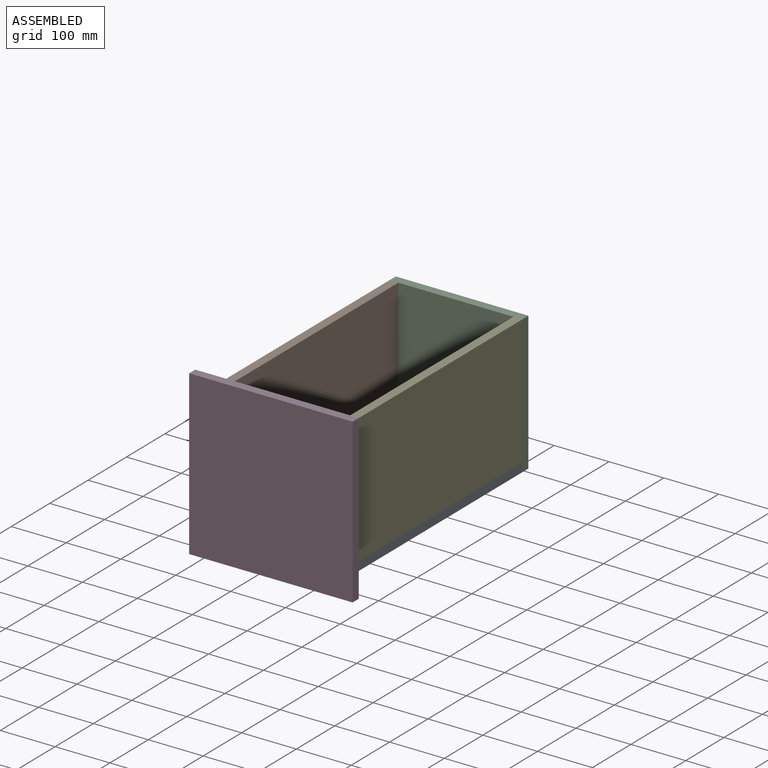
[diagram: assembled view]
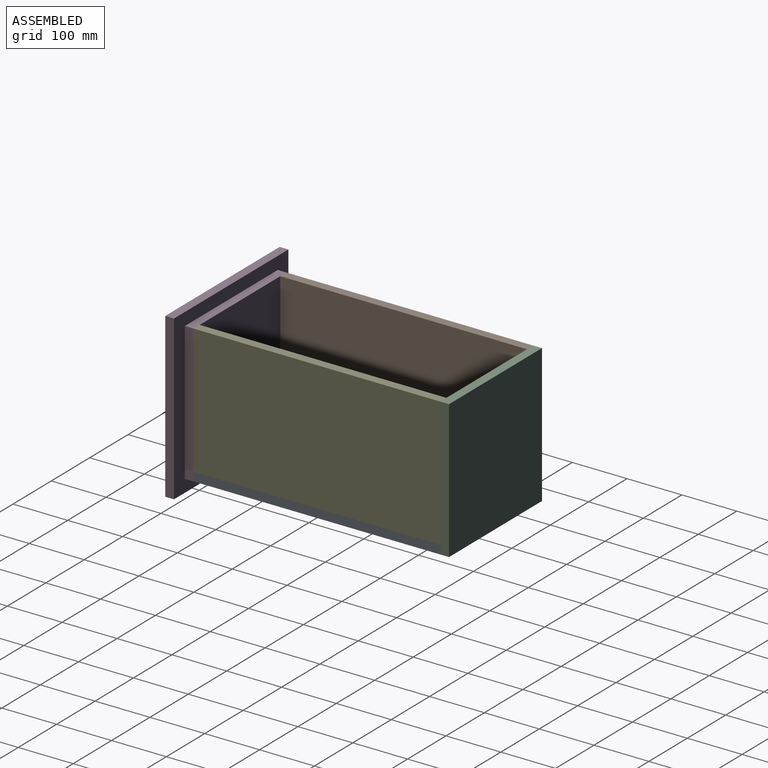
[diagram: assembled view, second angle]
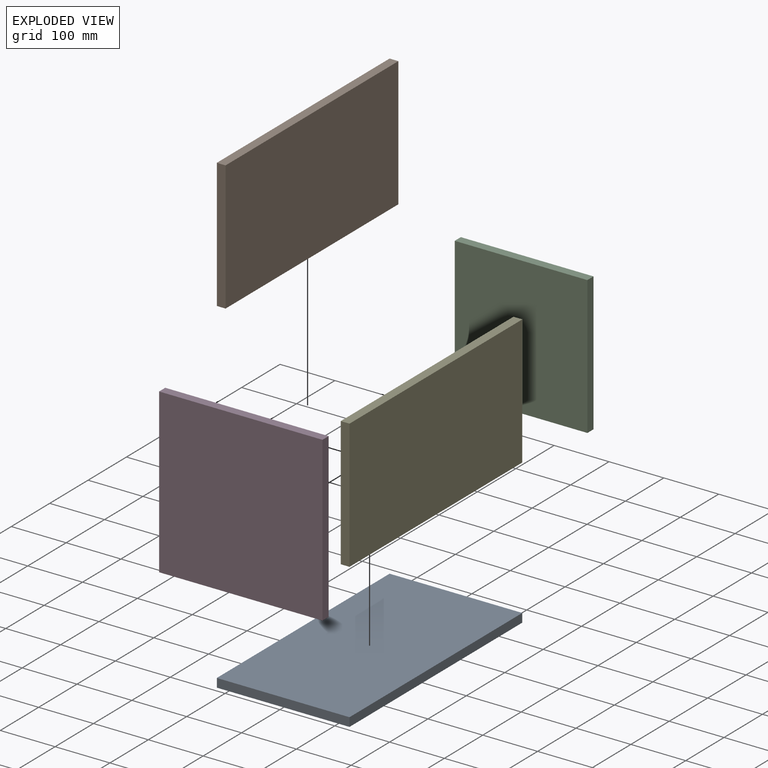
[diagram: exploded view]
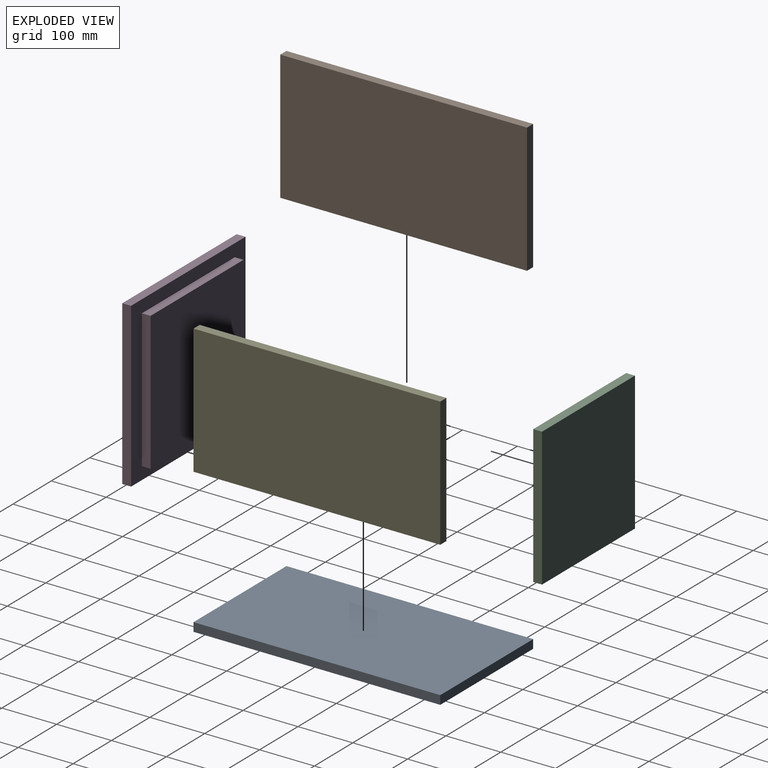
[diagram: exploded view, second angle]
ASSEMBLY  parts=5 mates=4
PART A: 6 faces, bbox 242x450x16 mm
  f0: plane 242x16mm, normal (0,-1,0), area 3872mm2, adj f1,f3,f4,f5
  f1: plane 450x16mm, normal (-1,0,0), area 7200mm2, adj f0,f2,f4,f5
  f2: plane 242x16mm, normal (0,1,0), area 3872mm2, adj f1,f3,f4,f5
  f3: plane 450x16mm, normal (1,0,0), area 7200mm2, adj f0,f2,f4,f5
  f4: plane 450x242mm, normal (0,0,1), area 108900mm2, adj f0,f1,f2,f3
  f5: plane 450x242mm, normal (0,0,-1), area 108900mm2, adj f0,f1,f2,f3
PART B: 6 faces, bbox 16x450x236 mm
  f0: plane 450x16mm, normal (0,0,1), area 7200mm2, adj f1,f3,f4,f5
  f1: plane 236x16mm, normal (0,1,0), area 3776mm2, adj f0,f2,f4,f5
  f2: plane 450x16mm, normal (0,0,-1), area 7200mm2, adj f1,f3,f4,f5
  f3: plane 236x16mm, normal (0,-1,0), area 3776mm2, adj f0,f2,f4,f5
  f4: plane 450x236mm, normal (1,0,0), area 106200mm2, adj f0,f1,f2,f3
  f5: plane 450x236mm, normal (-1,0,0), area 106200mm2, adj f0,f1,f2,f3
PART C: 6 faces, bbox 242x16x252 mm
  f0: plane 242x16mm, normal (0,0,1), area 3872mm2, adj f1,f3,f4,f5
  f1: plane 252x16mm, normal (1,0,0), area 4032mm2, adj f0,f2,f4,f5
  f2: plane 242x16mm, normal (0,0,-1), area 3872mm2, adj f1,f3,f4,f5
  f3: plane 252x16mm, normal (-1,0,0), area 4032mm2, adj f0,f2,f4,f5
  f4: plane 252x242mm, normal (0,1,0), area 60984mm2, adj f0,f1,f2,f3
  f5: plane 252x242mm, normal (0,-1,0), area 60984mm2, adj f0,f1,f2,f3
PART D: 11 faces, bbox 298x32x298 mm
  f0: plane 298x16mm, normal (0,0,1), area 4768mm2, adj f1,f3,f4,f5
  f1: plane 298x16mm, normal (-1,0,0), area 4768mm2, adj f0,f2,f4,f5
  f2: plane 298x16mm, normal (0,0,-1), area 4768mm2, adj f1,f3,f4,f5
  f3: plane 298x16mm, normal (1,0,0), area 4768mm2, adj f0,f2,f4,f5
  f4: plane 298x298mm, normal (0,-1,0), area 88804mm2, adj f0,f1,f2,f3
  f5: plane 298x298mm, normal (0,1,0), area 27820mm2, adj f0,f1,f2,f3,f6,f7,f8,f9
  f6: plane 242x16mm, normal (0,0,-1), area 3872mm2, adj f5,f7,f9,f10
  f7: plane 252x16mm, normal (-1,0,0), area 4032mm2, adj f5,f6,f8,f10
  f8: plane 242x16mm, normal (0,0,1), area 3872mm2, adj f5,f7,f9,f10
  f9: plane 252x16mm, normal (1,0,0), area 4032mm2, adj f5,f6,f8,f10
  f10: plane 252x242mm, normal (0,1,0), area 60984mm2, adj f6,f7,f8,f9
PART E: 6 faces, bbox 16x450x236 mm
  f0: plane 450x16mm, normal (0,0,1), area 7200mm2, adj f1,f3,f4,f5
  f1: plane 236x16mm, normal (0,1,0), area 3776mm2, adj f0,f2,f4,f5
  f2: plane 450x16mm, normal (0,0,-1), area 7200mm2, adj f1,f3,f4,f5
  f3: plane 236x16mm, normal (0,-1,0), area 3776mm2, adj f0,f2,f4,f5
  f4: plane 450x236mm, normal (-1,0,0), area 106200mm2, adj f0,f1,f2,f3
  f5: plane 450x236mm, normal (1,0,0), area 106200mm2, adj f0,f1,f2,f3
PLACE A t=(-139.62,-223.72,119.88)mm
PLACE B t=(-139.62,-223.72,119.88)mm
PLACE C t=(-139.62,-223.72,119.88)mm
PLACE D t=(-139.62,-223.72,119.88)mm
PLACE E t=(-139.62,-223.72,119.88)mm
MATE fastened C.f5 <-> A.f2  axis (0,-1,0) through (-167.62,242.28,137.88)mm
MATE fastened E.f2 <-> A.f4  axis (0,0,-1) through (-175.62,17.28,153.88)mm
MATE fastened A.f0 <-> D.f10  axis (0,-1,0) through (-288.62,-207.72,145.88)mm
MATE fastened B.f2 <-> A.f4  axis (0,0,-1) through (-401.62,17.28,153.88)mm
